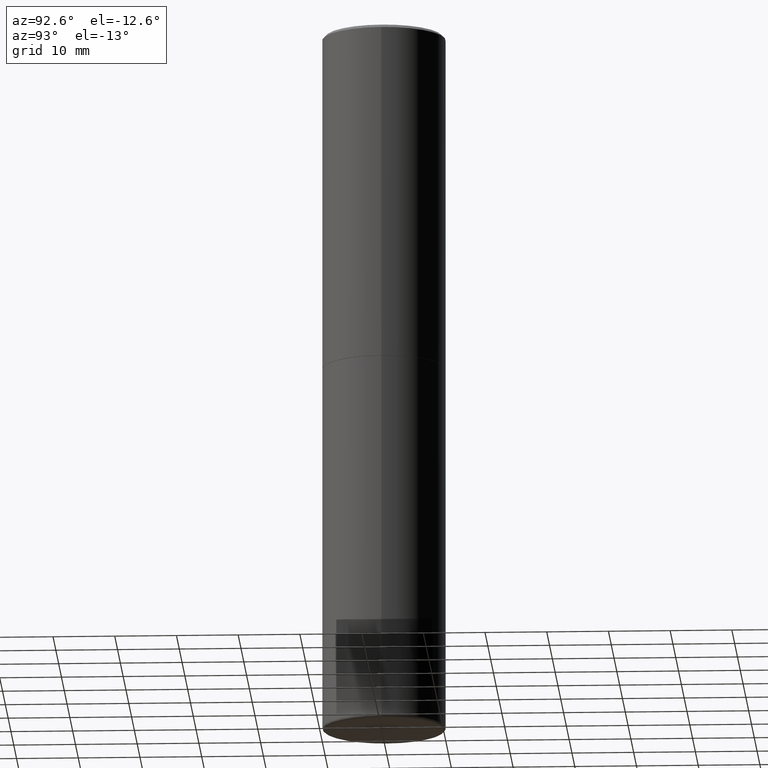
[diagram: clean part render]
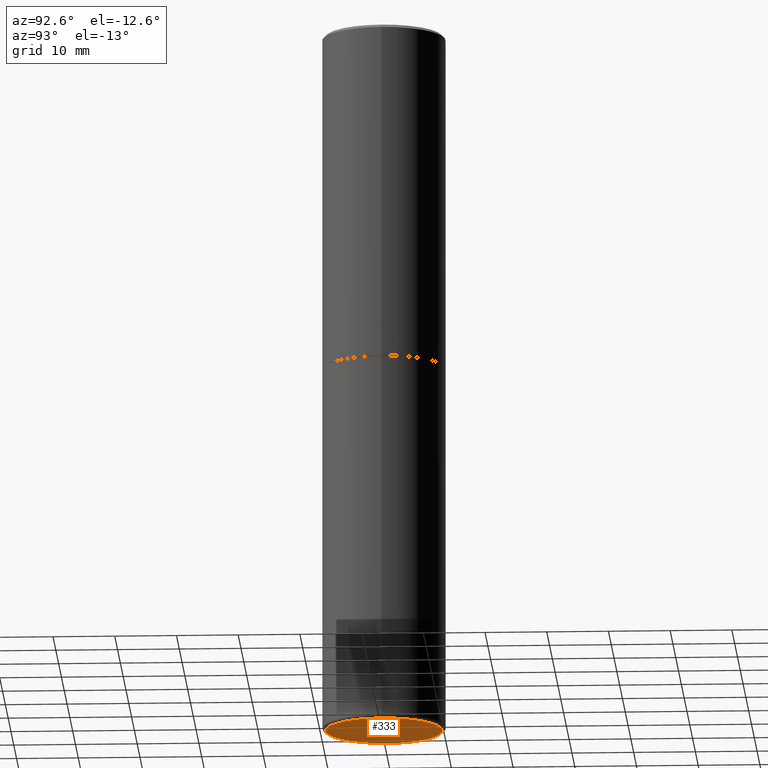
[diagram: same view with one face highlighted and labeled with its STEP entity id]
A machine part, auxiliary view. The second image highlights one B-rep face of the part: STEP entity #333.
In plain terms, the highlighted planar face has unit normal (0, -0, -1).
Its self-contained STEP definition (entity closure, byte-faithful):
#3 = CARTESIAN_POINT ( 'NONE',  ( 0.3739999999999999991, -1.841965895120088790E-14, -4.527599999999999625 ) ) ;
#9 = AXIS2_PLACEMENT_3D ( 'NONE', #140, #273, #198 ) ;
#29 = CIRCLE ( 'NONE', #360, 0.3739999999999999991 ) ;
#49 = VERTEX_POINT ( 'NONE', #3 ) ;
#56 = EDGE_LOOP ( 'NONE', ( #256, #189 ) ) ;
#64 = PLANE ( 'NONE',  #341 ) ;
#125 = CARTESIAN_POINT ( 'NONE',  ( 1.107210456688382298E-28, -1.580803090974622389E-14, -4.527599999999999625 ) ) ;
#127 = FACE_OUTER_BOUND ( 'NONE', #56, .T. ) ;
#140 = CARTESIAN_POINT ( 'NONE',  ( 1.107210456688382298E-28, -1.580803090974622389E-14, -4.527599999999999625 ) ) ;
#177 = DIRECTION ( 'NONE',  ( -2.445468806185136597E-29, 3.491481338843145583E-15, 1.000000000000000000 ) ) ;
#189 = ORIENTED_EDGE ( 'NONE', *, *, #302, .F. ) ;
#198 = DIRECTION ( 'NONE',  ( 1.000000000000000000, -6.982962677686270655E-15, 0.000000000000000000 ) ) ;
#219 = EDGE_CURVE ( 'NONE', #49, #373, #29, .T. ) ;
#230 = DIRECTION ( 'NONE',  ( 2.438088387897960049E-29, -3.491481338843145188E-15, -1.000000000000000000 ) ) ;
#256 = ORIENTED_EDGE ( 'NONE', *, *, #219, .F. ) ;
#273 = DIRECTION ( 'NONE',  ( -2.445468806185136597E-29, 3.491481338843145583E-15, 1.000000000000000000 ) ) ;
#275 = CARTESIAN_POINT ( 'NONE',  ( 1.107210456688382298E-28, -1.580803090974622389E-14, -4.527599999999999625 ) ) ;
#287 = CIRCLE ( 'NONE', #9, 0.3739999999999999991 ) ;
#296 = DIRECTION ( 'NONE',  ( -1.000000000000000000, 6.982962677686265922E-15, -4.876176775795935793E-29 ) ) ;
#302 = EDGE_CURVE ( 'NONE', #373, #49, #287, .T. ) ;
#311 = DIRECTION ( 'NONE',  ( 1.000000000000000000, -6.982962677686270655E-15, 0.000000000000000000 ) ) ;
#333 = ADVANCED_FACE ( 'NONE', ( #127 ), #64, .T. ) ;
#341 = AXIS2_PLACEMENT_3D ( 'NONE', #125, #230, #296 ) ;
#360 = AXIS2_PLACEMENT_3D ( 'NONE', #275, #177, #311 ) ;
#373 = VERTEX_POINT ( 'NONE', #383 ) ;
#383 = CARTESIAN_POINT ( 'NONE',  ( -0.3739999999999999991, -1.304622152734347672E-14, -4.527599999999999625 ) ) ;